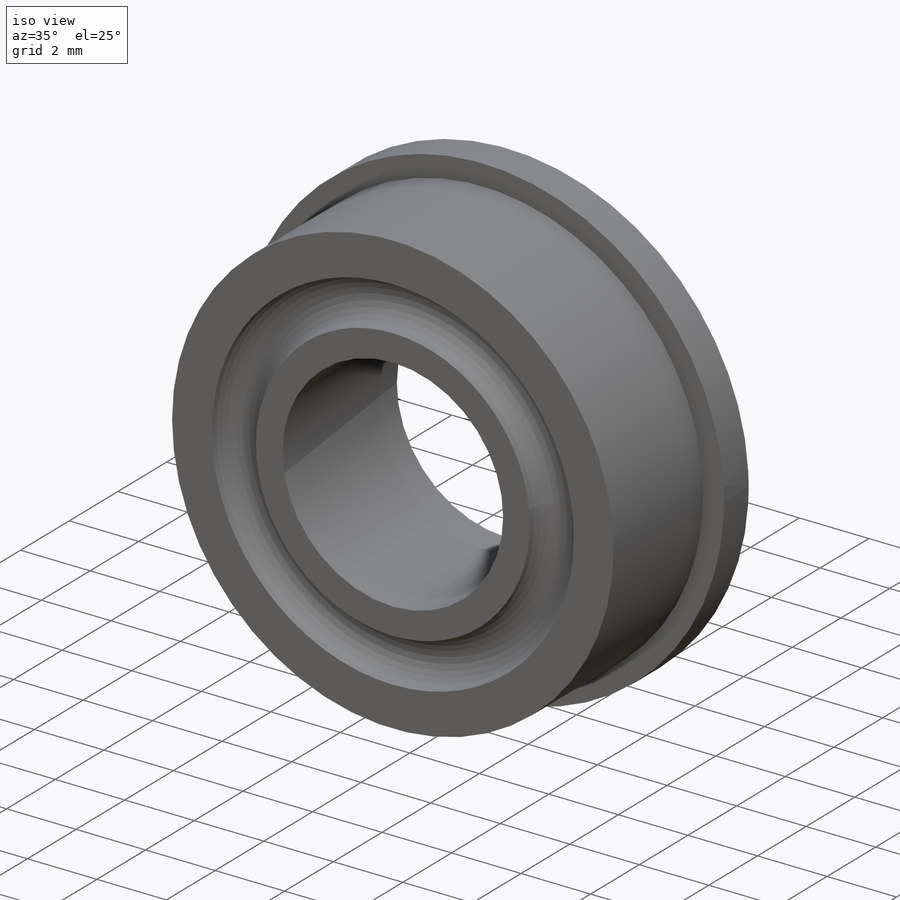
[diagram: iso view]
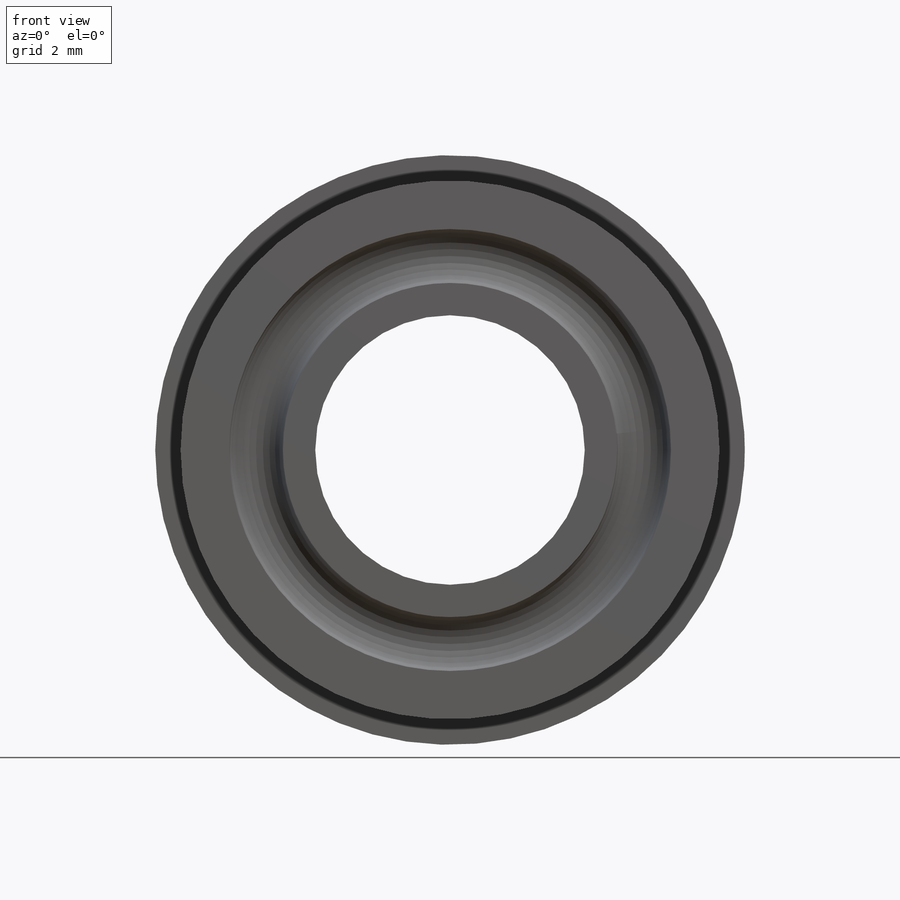
[diagram: front view]
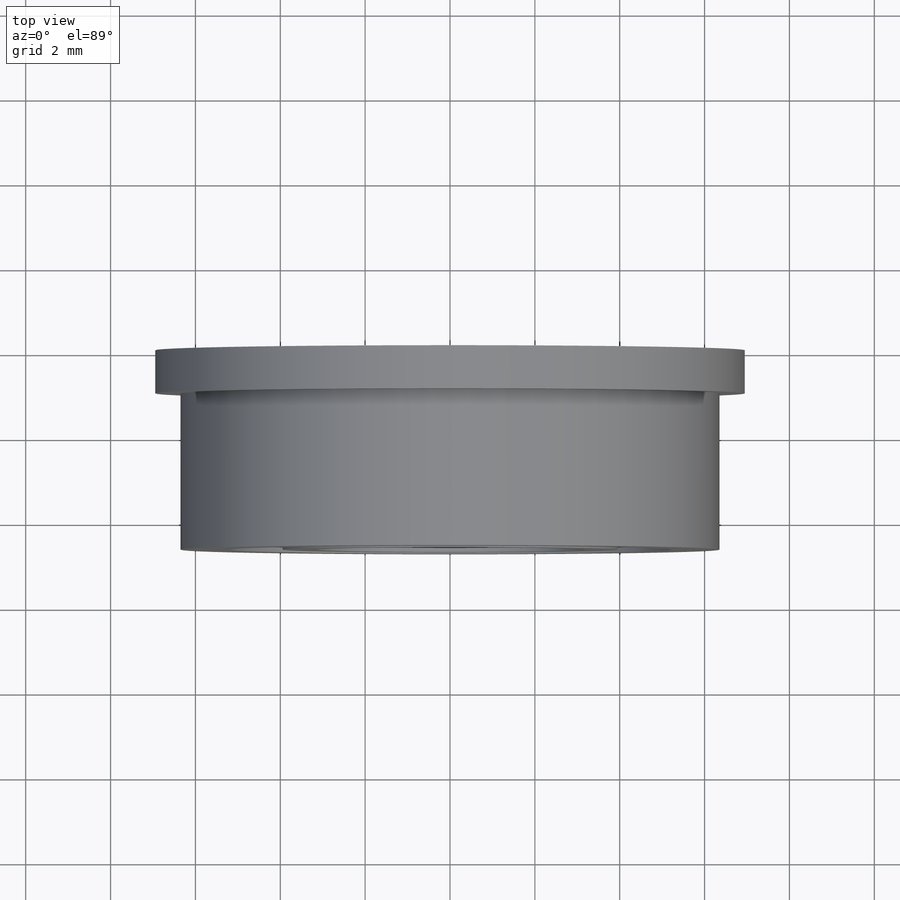
[diagram: top view]
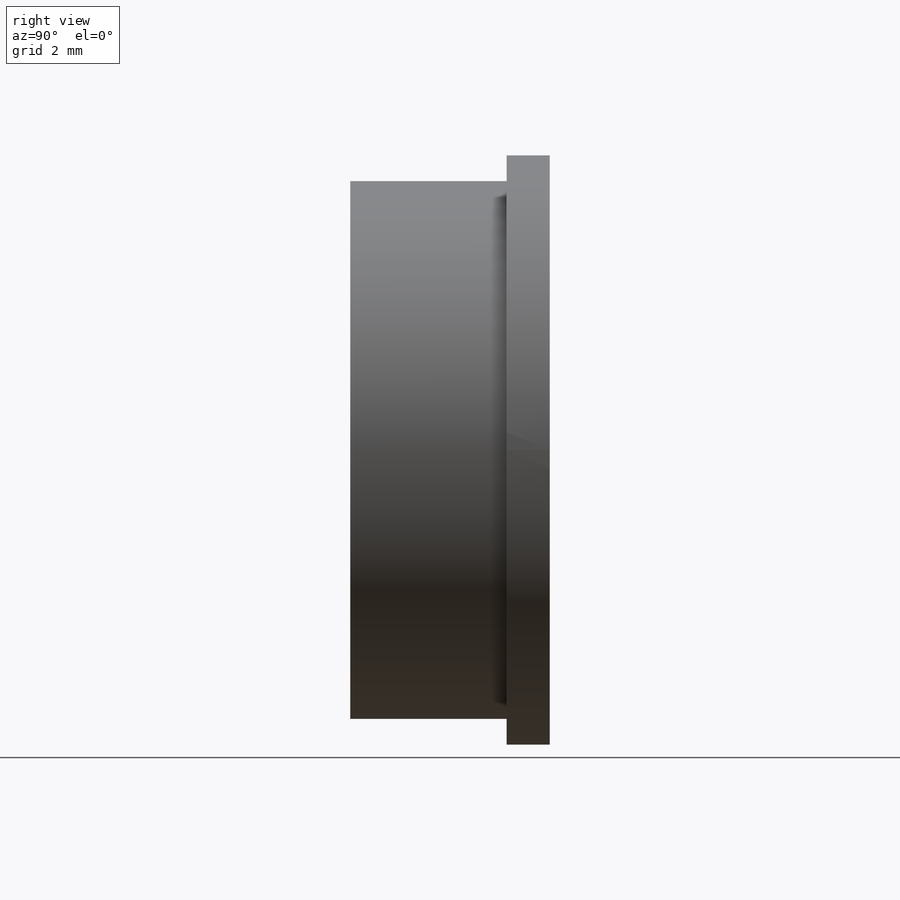
[diagram: right view]
SOLIDWORKS PART (.sldprt)
format: sldprt  version: not decoded by parser v0  size: 236,544 bytes
history: native  units: mm
features: sketch x3, extrude x2, material x1, cut_revolve x1 (+13 scaffold rows collapsed)
feature tree (20):
  scaffold x13  (default folders/planes/origin — collapsed)
  material  "Material <not specified>"
  sketch  "Sketch1"  dims[D1=13.8938mm D2=6.35mm]
  extrude  "Boss-Extrude1"  Depth=1.016mm
  sketch  "Sketch2"  dims[D1=6.35mm D2=12.7mm]
  extrude  "Boss-Extrude2"  Depth=3.683mm
  sketch  "Sketch7"  dims[D1=0.635mm D3=0.635mm D2=4.572mm D4=4.572mm]
  cut_revolve  "Cut-Revolve2"  Angle=360deg
decode coverage: 6 of 6 modeling features carry decoded parameters
note: suppression state not decoded; provenance and decode notes live in map.json
